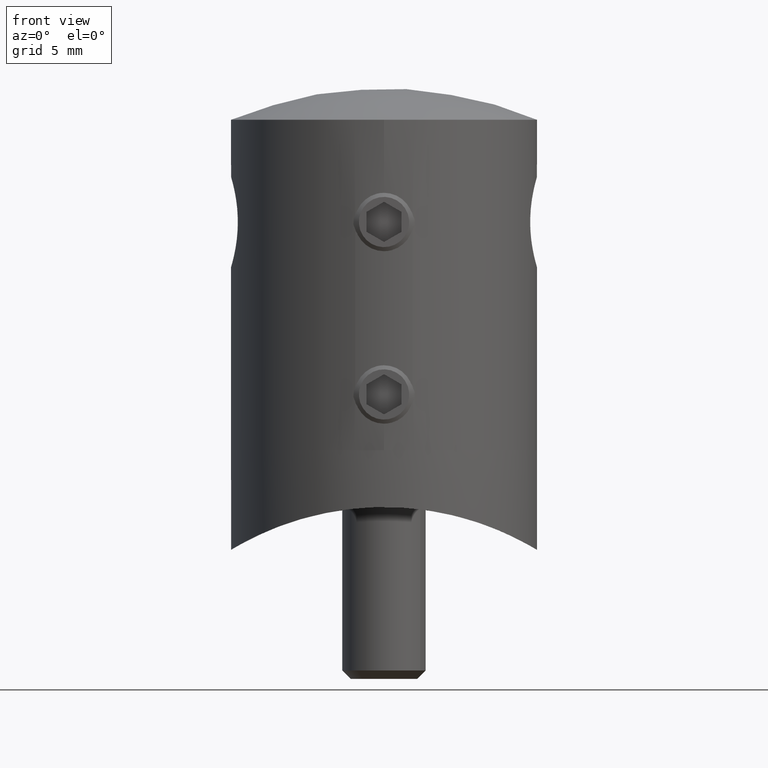
[diagram: clean part render]
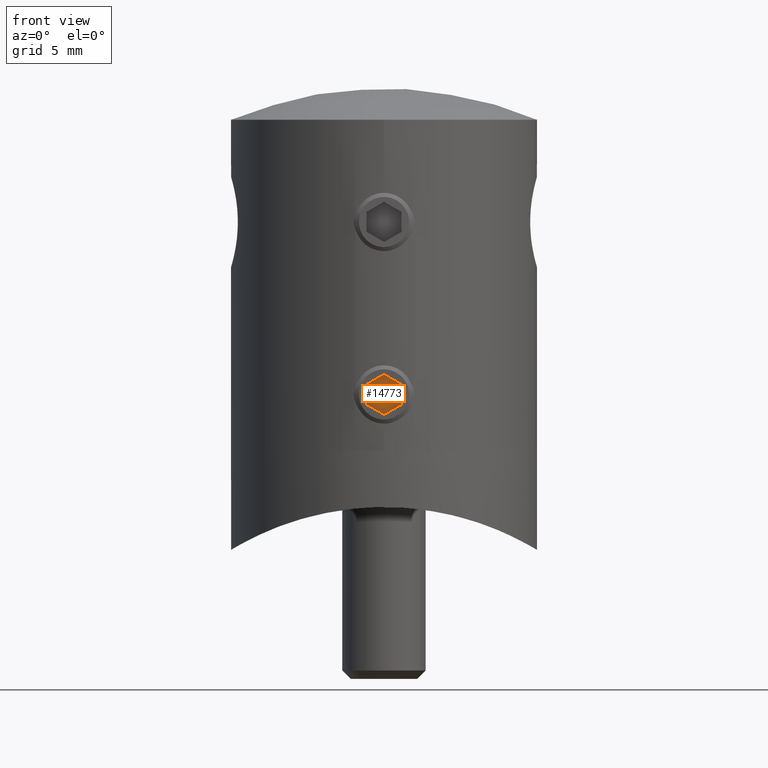
[diagram: same view with one face highlighted and labeled with its STEP entity id]
A machine part, front view. The second image highlights one B-rep face of the part: STEP entity #14773.
In plain terms, the highlighted planar face has unit normal (0, -1, 0).
Its self-contained STEP definition (entity closure, byte-faithful):
#10 = VECTOR ( 'NONE', #10956, 1000.000000000000227 ) ;
#838 = EDGE_CURVE ( 'NONE', #14093, #9677, #17034, .T. ) ;
#1026 = DIRECTION ( 'NONE',  ( 0.000000000000000000, -0.4999999999999997224, 0.8660254037844387076 ) ) ;
#1651 = CARTESIAN_POINT ( 'NONE',  ( 3.000000000000000000, 0.7216878364870331630, 1.250000000000000000 ) ) ;
#2018 = ORIENTED_EDGE ( 'NONE', *, *, #4094, .T. ) ;
#2147 = LINE ( 'NONE', #4130, #10 ) ;
#2305 = CARTESIAN_POINT ( 'NONE',  ( 3.000000000000000000, -2.165063509461096380, -1.249999999999999778 ) ) ;
#2644 = VECTOR ( 'NONE', #10805, 1000.000000000000000 ) ;
#3067 = VECTOR ( 'NONE', #1026, 1000.000000000000114 ) ;
#3366 = CARTESIAN_POINT ( 'NONE',  ( 3.000000000000000000, -0.7216878364870321638, 1.250000000000000000 ) ) ;
#3502 = PLANE ( 'NONE',  #6733 ) ;
#3758 = DIRECTION ( 'NONE',  ( 0.000000000000000000, -1.000000000000000000, 0.000000000000000000 ) ) ;
#3923 = CARTESIAN_POINT ( 'NONE',  ( 3.000000000000000000, -1.443375672974064328, 3.163420105187502099E-16 ) ) ;
#4094 = EDGE_CURVE ( 'NONE', #17033, #8765, #7104, .T. ) ;
#4130 = CARTESIAN_POINT ( 'NONE',  ( 3.000000000000000000, 0.7216878364870333851, -1.249999999999999778 ) ) ;
#4354 = CARTESIAN_POINT ( 'NONE',  ( 3.000000000000000000, -1.443375672974064328, 3.163420105187502099E-16 ) ) ;
#4541 = ORIENTED_EDGE ( 'NONE', *, *, #838, .T. ) ;
#4722 = VERTEX_POINT ( 'NONE', #12939 ) ;
#5060 = CARTESIAN_POINT ( 'NONE',  ( 3.000000000000000000, -0.7216878364870329410, -1.249999999999999778 ) ) ;
#5441 = FACE_OUTER_BOUND ( 'NONE', #13451, .T. ) ;
#6259 = CARTESIAN_POINT ( 'NONE',  ( 3.000000000000000000, -0.7216878364870329410, -1.249999999999999778 ) ) ;
#6466 = CARTESIAN_POINT ( 'NONE',  ( 3.000000000000000000, 1.443375672974065216, -3.491482335382446237E-16 ) ) ;
#6733 = AXIS2_PLACEMENT_3D ( 'NONE', #2305, #7852, #17239 ) ;
#7104 = LINE ( 'NONE', #11101, #17018 ) ;
#7319 = LINE ( 'NONE', #3923, #2644 ) ;
#7852 = DIRECTION ( 'NONE',  ( 1.000000000000000000, -0.000000000000000000, 0.000000000000000000 ) ) ;
#7910 = VECTOR ( 'NONE', #15880, 1000.000000000000000 ) ;
#8636 = ORIENTED_EDGE ( 'NONE', *, *, #12176, .T. ) ;
#8745 = CARTESIAN_POINT ( 'NONE',  ( 3.000000000000000000, 1.443375672974065216, -3.491482335382446237E-16 ) ) ;
#8765 = VERTEX_POINT ( 'NONE', #4354 ) ;
#8979 = EDGE_CURVE ( 'NONE', #8765, #12339, #7319, .T. ) ;
#9612 = LINE ( 'NONE', #5060, #7910 ) ;
#9677 = VERTEX_POINT ( 'NONE', #1651 ) ;
#10805 = DIRECTION ( 'NONE',  ( 0.000000000000000000, 0.4999999999999995559, -0.8660254037844389297 ) ) ;
#10956 = DIRECTION ( 'NONE',  ( 0.000000000000000000, 0.4999999999999998890, 0.8660254037844385966 ) ) ;
#11101 = CARTESIAN_POINT ( 'NONE',  ( 3.000000000000000000, -0.7216878364870321638, 1.250000000000000000 ) ) ;
#11168 = DIRECTION ( 'NONE',  ( 0.000000000000000000, -0.5000000000000001110, -0.8660254037844387076 ) ) ;
#11340 = EDGE_CURVE ( 'NONE', #12339, #4722, #9612, .T. ) ;
#12176 = EDGE_CURVE ( 'NONE', #4722, #14093, #2147, .T. ) ;
#12339 = VERTEX_POINT ( 'NONE', #6259 ) ;
#12443 = LINE ( 'NONE', #14589, #13712 ) ;
#12939 = CARTESIAN_POINT ( 'NONE',  ( 3.000000000000000000, 0.7216878364870333851, -1.249999999999999778 ) ) ;
#13183 = ORIENTED_EDGE ( 'NONE', *, *, #14170, .T. ) ;
#13451 = EDGE_LOOP ( 'NONE', ( #2018, #17210, #17318, #8636, #4541, #13183 ) ) ;
#13712 = VECTOR ( 'NONE', #3758, 1000.000000000000000 ) ;
#14093 = VERTEX_POINT ( 'NONE', #8745 ) ;
#14170 = EDGE_CURVE ( 'NONE', #9677, #17033, #12443, .T. ) ;
#14589 = CARTESIAN_POINT ( 'NONE',  ( 3.000000000000000000, 0.7216878364870331630, 1.250000000000000000 ) ) ;
#14773 = ADVANCED_FACE ( 'NONE', ( #5441 ), #3502, .T. ) ;
#15880 = DIRECTION ( 'NONE',  ( 0.000000000000000000, 1.000000000000000000, 0.000000000000000000 ) ) ;
#17018 = VECTOR ( 'NONE', #11168, 999.9999999999998863 ) ;
#17033 = VERTEX_POINT ( 'NONE', #3366 ) ;
#17034 = LINE ( 'NONE', #6466, #3067 ) ;
#17210 = ORIENTED_EDGE ( 'NONE', *, *, #8979, .T. ) ;
#17239 = DIRECTION ( 'NONE',  ( 0.000000000000000000, 0.000000000000000000, -1.000000000000000000 ) ) ;
#17318 = ORIENTED_EDGE ( 'NONE', *, *, #11340, .T. ) ;